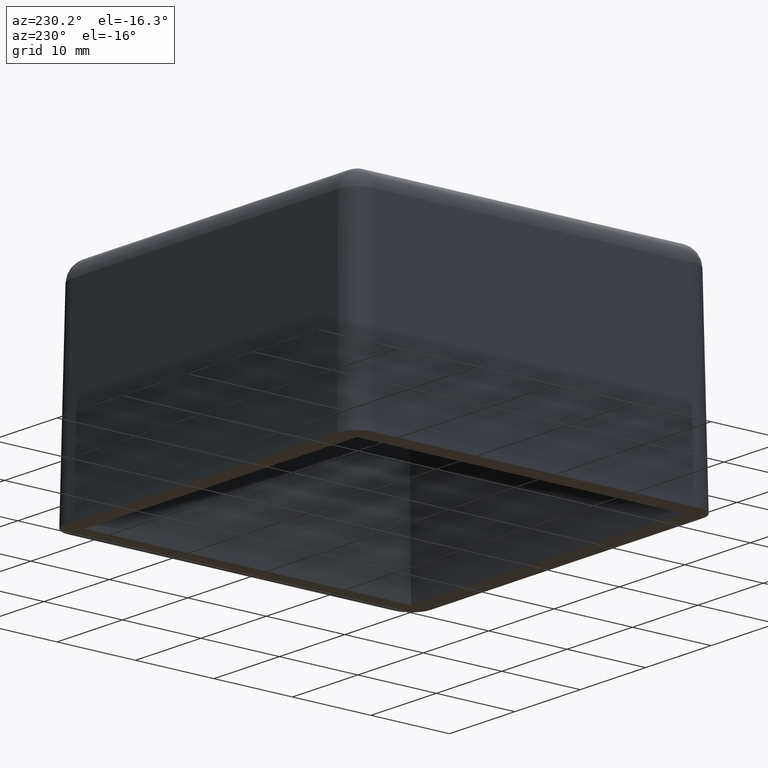
[diagram: clean part render]
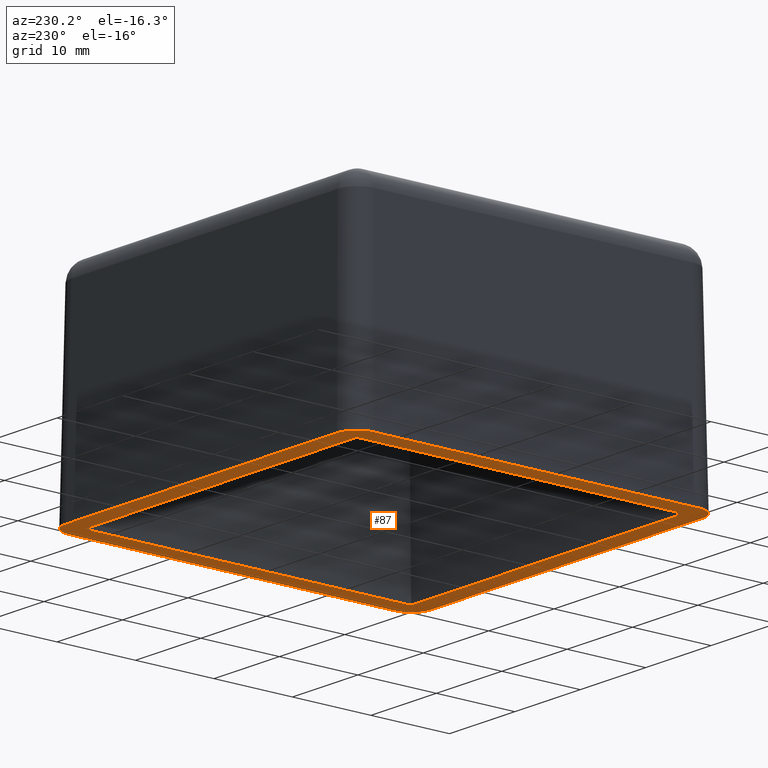
[diagram: same view with one face highlighted and labeled with its STEP entity id]
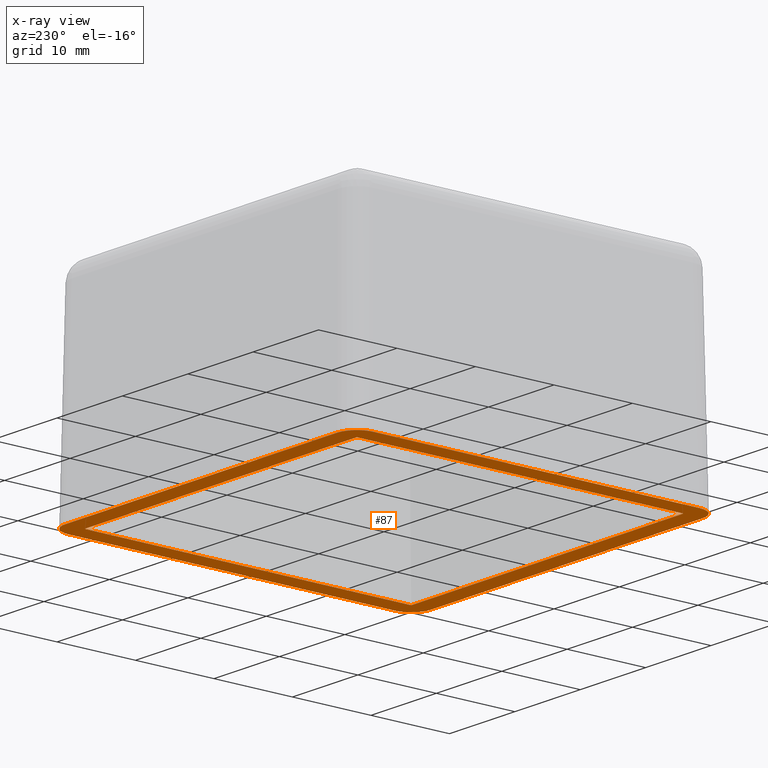
[diagram: x-ray of the same camera — body ghosted, the highlighted face saturated]
A machine part, auxiliary view. The second image highlights one B-rep face of the part: STEP entity #87.
The next image is the same camera in x-ray: the body ghosted, the highlighted face saturated — about 0% of this face is hidden behind the body in this view.
In plain terms, the highlighted planar face has unit normal (0, 0, 1).
Its self-contained STEP definition (entity closure, byte-faithful):
#87 = ADVANCED_FACE( '', ( #194, #195 ), #196, .F. );
#194 = FACE_BOUND( '', #380, .T. );
#195 = FACE_OUTER_BOUND( '', #381, .T. );
#196 = PLANE( '', #382 );
#380 = EDGE_LOOP( '', ( #662, #663, #664, #665 ) );
#381 = EDGE_LOOP( '', ( #666, #667, #668, #669, #670, #671, #672, #673 ) );
#382 = AXIS2_PLACEMENT_3D( '', #674, #675, #676 );
#662 = ORIENTED_EDGE( '', *, *, #1302, .T. );
#663 = ORIENTED_EDGE( '', *, *, #1303, .T. );
#664 = ORIENTED_EDGE( '', *, *, #1304, .T. );
#665 = ORIENTED_EDGE( '', *, *, #1305, .T. );
#666 = ORIENTED_EDGE( '', *, *, #1279, .F. );
#667 = ORIENTED_EDGE( '', *, *, #1287, .T. );
#668 = ORIENTED_EDGE( '', *, *, #1290, .F. );
#669 = ORIENTED_EDGE( '', *, *, #1299, .T. );
#670 = ORIENTED_EDGE( '', *, *, #1301, .F. );
#671 = ORIENTED_EDGE( '', *, *, #1306, .T. );
#672 = ORIENTED_EDGE( '', *, *, #1307, .F. );
#673 = ORIENTED_EDGE( '', *, *, #1308, .T. );
#674 = CARTESIAN_POINT( '', ( -23.3000000000000, -23.3000000000000, 0.000000000000000 ) );
#675 = DIRECTION( '', ( 0.000000000000000, 0.000000000000000, 1.00000000000000 ) );
#676 = DIRECTION( '', ( 0.000000000000000, -1.00000000000000, 0.000000000000000 ) );
#1279 = EDGE_CURVE( '', #1531, #1526, #1533, .F. );
#1287 = EDGE_CURVE( '', #1531, #1544, #1546, .F. );
#1290 = EDGE_CURVE( '', #1549, #1544, #1551, .F. );
#1299 = EDGE_CURVE( '', #1549, #1561, #1563, .F. );
#1301 = EDGE_CURVE( '', #1564, #1561, #1566, .F. );
#1302 = EDGE_CURVE( '', #1567, #1568, #1569, .F. );
#1303 = EDGE_CURVE( '', #1568, #1570, #1571, .F. );
#1304 = EDGE_CURVE( '', #1570, #1572, #1573, .F. );
#1305 = EDGE_CURVE( '', #1572, #1567, #1574, .F. );
#1306 = EDGE_CURVE( '', #1564, #1575, #1576, .F. );
#1307 = EDGE_CURVE( '', #1577, #1575, #1578, .F. );
#1308 = EDGE_CURVE( '', #1577, #1526, #1579, .F. );
#1526 = VERTEX_POINT( '', #1936 );
#1531 = VERTEX_POINT( '', #1943 );
#1533 = LINE( '', #1946, #1947 );
#1544 = VERTEX_POINT( '', #1965 );
#1546 = ELLIPSE( '', #1968, 2.50076158222762, 2.50000000000000 );
#1549 = VERTEX_POINT( '', #1972 );
#1551 = LINE( '', #1975, #1976 );
#1561 = VERTEX_POINT( '', #1987 );
#1563 = ELLIPSE( '', #1990, 2.50076158222762, 2.50000000000000 );
#1564 = VERTEX_POINT( '', #1991 );
#1566 = LINE( '', #1994, #1995 );
#1567 = VERTEX_POINT( '', #1996 );
#1568 = VERTEX_POINT( '', #1997 );
#1569 = LINE( '', #1998, #1999 );
#1570 = VERTEX_POINT( '', #2000 );
#1571 = LINE( '', #2001, #2002 );
#1572 = VERTEX_POINT( '', #2003 );
#1573 = LINE( '', #2004, #2005 );
#1574 = LINE( '', #2006, #2007 );
#1575 = VERTEX_POINT( '', #2008 );
#1576 = ELLIPSE( '', #2009, 2.50076158222762, 2.50000000000000 );
#1577 = VERTEX_POINT( '', #2010 );
#1578 = LINE( '', #2011, #2012 );
#1579 = ELLIPSE( '', #2013, 2.50076158222762, 2.50000000000000 );
#1936 = CARTESIAN_POINT( '', ( -23.3000000000000, -20.8003807621090, 0.000000000000000 ) );
#1943 = CARTESIAN_POINT( '', ( -23.3000000000000, 20.8003807621090, 0.000000000000000 ) );
#1946 = CARTESIAN_POINT( '', ( -23.3000000000000, -23.3000000000000, 0.000000000000000 ) );
#1947 = VECTOR( '', #2423, 1000.00000000000 );
#1965 = CARTESIAN_POINT( '', ( -20.8003807621090, 23.3000000000000, 0.000000000000000 ) );
#1968 = AXIS2_PLACEMENT_3D( '', #2431, #2432, #2433 );
#1972 = CARTESIAN_POINT( '', ( 20.8003807621090, 23.3000000000000, 0.000000000000000 ) );
#1975 = CARTESIAN_POINT( '', ( -23.3000000000000, 23.3000000000000, 0.000000000000000 ) );
#1976 = VECTOR( '', #2436, 1000.00000000000 );
#1987 = CARTESIAN_POINT( '', ( 23.3000000000000, 20.8003807621090, 0.000000000000000 ) );
#1990 = AXIS2_PLACEMENT_3D( '', #2457, #2458, #2459 );
#1991 = CARTESIAN_POINT( '', ( 23.3000000000000, -20.8003807621090, 0.000000000000000 ) );
#1994 = CARTESIAN_POINT( '', ( 23.3000000000000, -23.3000000000000, 0.000000000000000 ) );
#1995 = VECTOR( '', #2461, 1000.00000000000 );
#1996 = CARTESIAN_POINT( '', ( 20.8000000000000, 20.8000000000000, 0.000000000000000 ) );
#1997 = CARTESIAN_POINT( '', ( -20.8000000000000, 20.8000000000000, 0.000000000000000 ) );
#1998 = CARTESIAN_POINT( '', ( -20.8000000000000, 20.8000000000000, 0.000000000000000 ) );
#1999 = VECTOR( '', #2462, 1000.00000000000 );
#2000 = CARTESIAN_POINT( '', ( -20.8000000000000, -20.8000000000000, 0.000000000000000 ) );
#2001 = CARTESIAN_POINT( '', ( -20.8000000000000, -20.8000000000000, 0.000000000000000 ) );
#2002 = VECTOR( '', #2463, 1000.00000000000 );
#2003 = CARTESIAN_POINT( '', ( 20.8000000000000, -20.8000000000000, 0.000000000000000 ) );
#2004 = CARTESIAN_POINT( '', ( -20.8000000000000, -20.8000000000000, 0.000000000000000 ) );
#2005 = VECTOR( '', #2464, 1000.00000000000 );
#2006 = CARTESIAN_POINT( '', ( 20.8000000000000, -20.8000000000000, 0.000000000000000 ) );
#2007 = VECTOR( '', #2465, 1000.00000000000 );
#2008 = CARTESIAN_POINT( '', ( 20.8003807621090, -23.3000000000000, 0.000000000000000 ) );
#2009 = AXIS2_PLACEMENT_3D( '', #2466, #2467, #2468 );
#2010 = CARTESIAN_POINT( '', ( -20.8003807621090, -23.3000000000000, 0.000000000000000 ) );
#2011 = CARTESIAN_POINT( '', ( -23.3000000000000, -23.3000000000000, 0.000000000000000 ) );
#2012 = VECTOR( '', #2469, 1000.00000000000 );
#2013 = AXIS2_PLACEMENT_3D( '', #2470, #2471, #2472 );
#2423 = DIRECTION( '', ( 0.000000000000000, 1.00000000000000, 0.000000000000000 ) );
#2431 = CARTESIAN_POINT( '', ( -20.7996191798902, 20.7996191798902, 0.000000000000000 ) );
#2432 = DIRECTION( '', ( 0.000000000000000, 0.000000000000000, 1.00000000000000 ) );
#2433 = DIRECTION( '', ( -0.707106781186548, 0.707106781186548, 0.000000000000000 ) );
#2436 = DIRECTION( '', ( 1.00000000000000, 0.000000000000000, 0.000000000000000 ) );
#2457 = CARTESIAN_POINT( '', ( 20.7996191798902, 20.7996191798902, 0.000000000000000 ) );
#2458 = DIRECTION( '', ( 0.000000000000000, 0.000000000000000, 1.00000000000000 ) );
#2459 = DIRECTION( '', ( 0.707106781186548, 0.707106781186548, 0.000000000000000 ) );
#2461 = DIRECTION( '', ( 0.000000000000000, -1.00000000000000, 0.000000000000000 ) );
#2462 = DIRECTION( '', ( 1.00000000000000, 0.000000000000000, 0.000000000000000 ) );
#2463 = DIRECTION( '', ( 0.000000000000000, 1.00000000000000, 0.000000000000000 ) );
#2464 = DIRECTION( '', ( -1.00000000000000, 0.000000000000000, 0.000000000000000 ) );
#2465 = DIRECTION( '', ( 0.000000000000000, -1.00000000000000, 0.000000000000000 ) );
#2466 = CARTESIAN_POINT( '', ( 20.7996191798902, -20.7996191798902, 0.000000000000000 ) );
#2467 = DIRECTION( '', ( 0.000000000000000, 0.000000000000000, 1.00000000000000 ) );
#2468 = DIRECTION( '', ( 0.707106781186548, -0.707106781186548, 0.000000000000000 ) );
#2469 = DIRECTION( '', ( -1.00000000000000, 0.000000000000000, 0.000000000000000 ) );
#2470 = CARTESIAN_POINT( '', ( -20.7996191798902, -20.7996191798902, 0.000000000000000 ) );
#2471 = DIRECTION( '', ( 0.000000000000000, 0.000000000000000, 1.00000000000000 ) );
#2472 = DIRECTION( '', ( -0.707106781186548, -0.707106781186548, 0.000000000000000 ) );